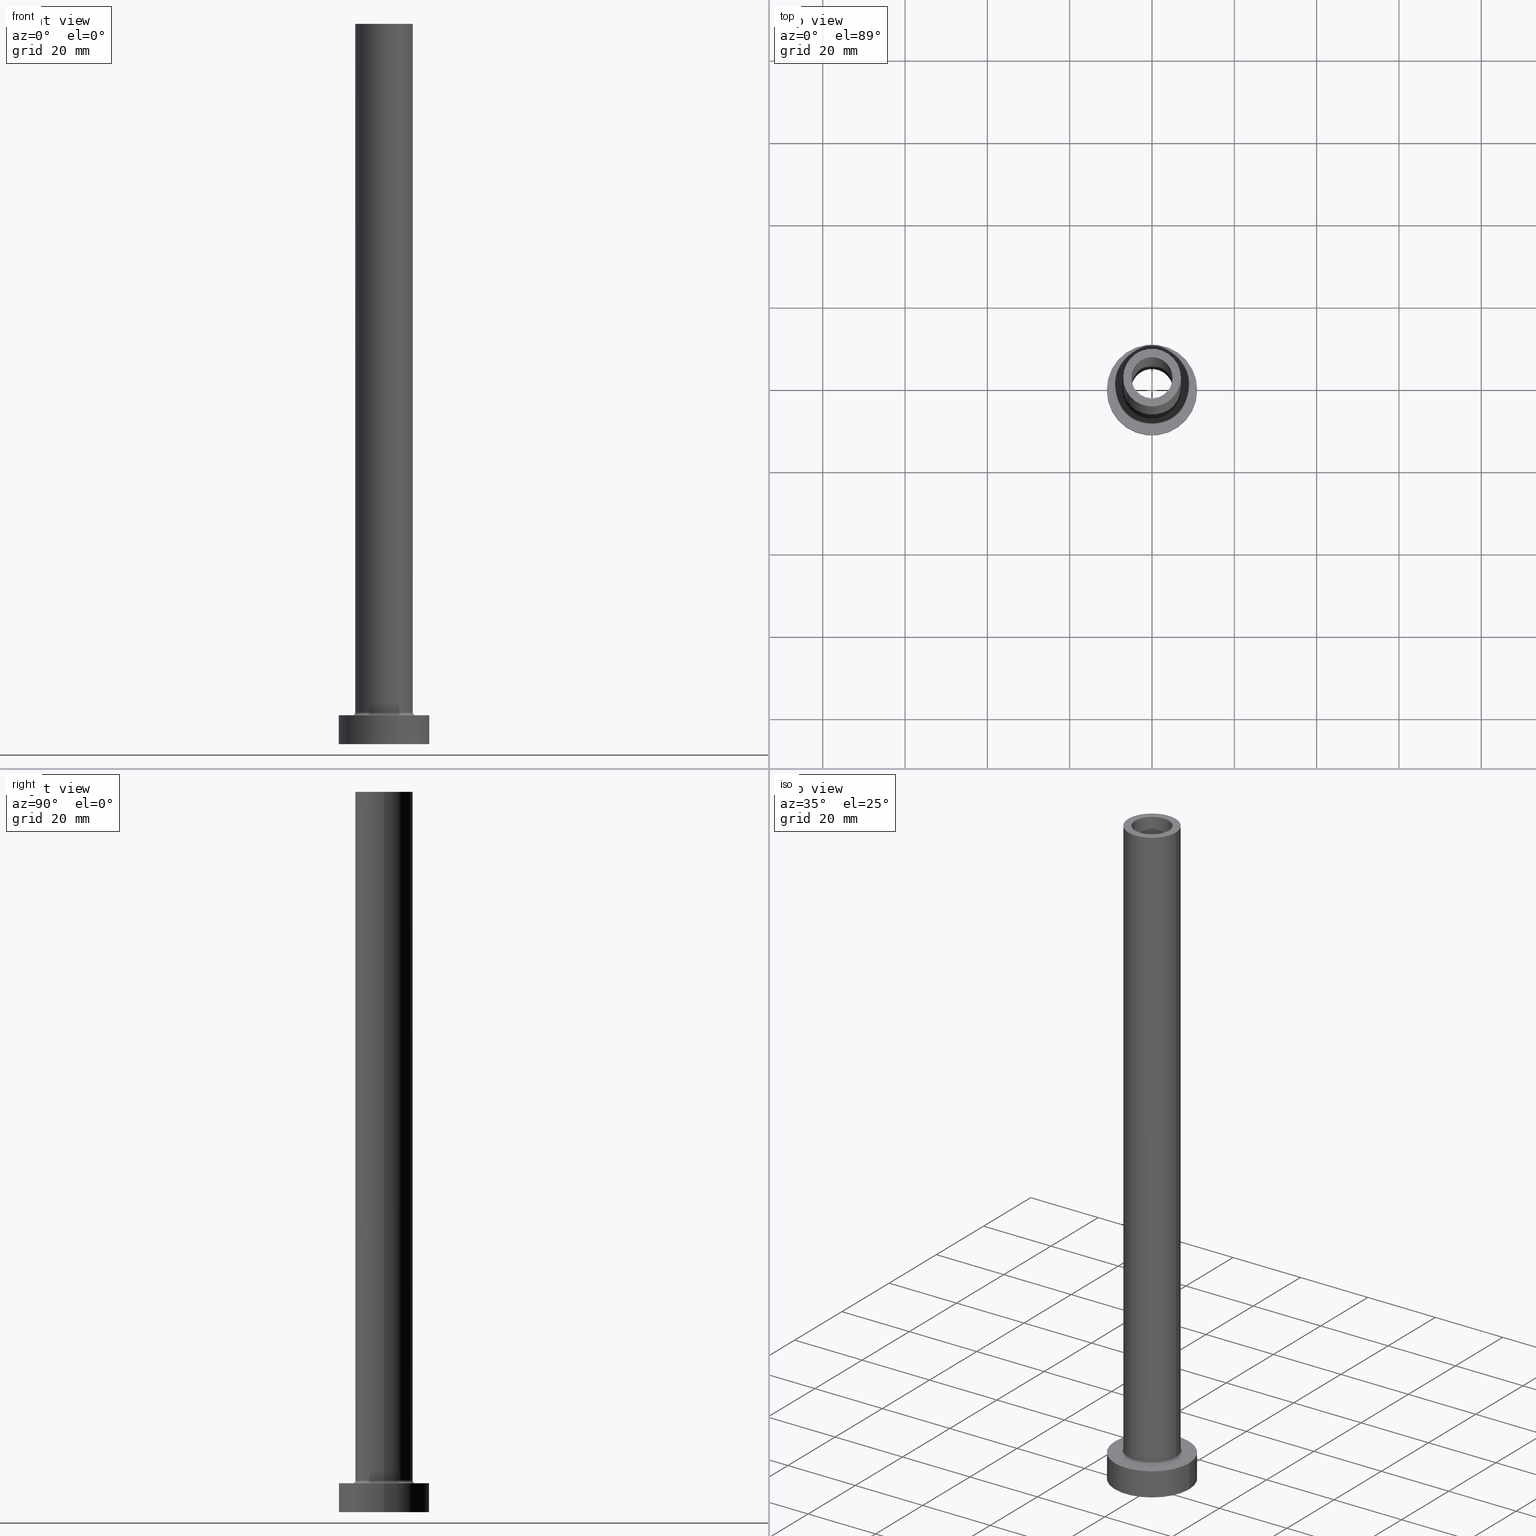
[diagram: canonical four-view strip — front | top / right | iso, engineering-drawing reading convention]
A machine part, canonical four-view strip (front | top / right | iso — engineering-drawing reading convention). The complete STEP part file that produces these views, byte-faithful:
ISO-10303-21;
HEADER;
FILE_DESCRIPTION (( 'STEP AP203' ),
    '1' );
FILE_NAME ('6ed9.STEP',
    '2023-02-13T10:08:19',
    ( '' ),
    ( '' ),
    'SwSTEP 2.0',
    'SolidWorks 2019',
    '' );
FILE_SCHEMA (( 'CONFIG_CONTROL_DESIGN' ));
ENDSEC;

DATA;
#1 = CARTESIAN_POINT ( 'NONE',  ( 0.000000000000000000, 0.000000000000000000, 130.0000000000000000 ) ) ;
#2 = EDGE_CURVE ( 'NONE', #259, #395, #414, .T. ) ;
#3 = EDGE_LOOP ( 'NONE', ( #216, #50 ) ) ;
#4 = ORIENTED_EDGE ( 'NONE', *, *, #83, .T. ) ;
#5 = CIRCLE ( 'NONE', #85, 5.000000000000000000 ) ;
#6 = VECTOR ( 'NONE', #121, 1000.000000000000000 ) ;
#7 = PRODUCT_RELATED_PRODUCT_CATEGORY ( 'detail', '', ( #456 ) ) ;
#8 = EDGE_LOOP ( 'NONE', ( #460, #440 ) ) ;
#9 = CARTESIAN_POINT ( 'NONE',  ( 11.00000000000000000, 1.347111479062088405E-15, 7.000000000000000000 ) ) ;
#10 = AXIS2_PLACEMENT_3D ( 'NONE', #351, #354, #417 ) ;
#11 = CC_DESIGN_APPROVAL ( #426, ( #382 ) ) ;
#12 = PERSON_AND_ORGANIZATION_ROLE ( 'creator' ) ;
#13 = CC_DESIGN_DATE_AND_TIME_ASSIGNMENT ( #161, #271, ( #450 ) ) ;
#14 = DIRECTION ( 'NONE',  ( -1.000000000000000000, 0.000000000000000000, 0.000000000000000000 ) ) ;
#15 = ORIENTED_EDGE ( 'NONE', *, *, #419, .T. ) ;
#16 = MANIFOLD_SOLID_BREP ( 'Odebrat vysunut�m4', #129 ) ;
#17 = DIRECTION ( 'NONE',  ( -0.000000000000000000, -0.000000000000000000, -1.000000000000000000 ) ) ;
#18 = CARTESIAN_POINT ( 'NONE',  ( 0.000000000000000000, 0.000000000000000000, 7.700000000000012612 ) ) ;
#19 = ORIENTED_EDGE ( 'NONE', *, *, #292, .T. ) ;
#20 = CIRCLE ( 'NONE', #409, 0.7000000000000000666 ) ;
#21 = CC_DESIGN_APPROVAL ( #205, ( #438 ) ) ;
#22 = CALENDAR_DATE ( 2023, 13, 2 ) ;
#23 = DIRECTION ( 'NONE',  ( -0.000000000000000000, -0.000000000000000000, -1.000000000000000000 ) ) ;
#24 = ORIENTED_EDGE ( 'NONE', *, *, #365, .T. ) ;
#25 = PERSON_AND_ORGANIZATION ( #214, #248 ) ;
#26 = CARTESIAN_POINT ( 'NONE',  ( -5.000000000000000000, 0.000000000000000000, 130.0000000000000000 ) ) ;
#27 = CALENDAR_DATE ( 2023, 13, 2 ) ;
#28 = CARTESIAN_POINT ( 'NONE',  ( 7.000000000000000888, 8.572527594031472204E-16, 7.700000000000012612 ) ) ;
#29 = VERTEX_POINT ( 'NONE', #439 ) ;
#30 = CIRCLE ( 'NONE', #256, 7.000000000000000888 ) ;
#31 = APPLICATION_PROTOCOL_DEFINITION ( 'international standard', 'config_control_design', 1994, #349 ) ;
#32 = PERSON_AND_ORGANIZATION ( #214, #248 ) ;
#33 = VERTEX_POINT ( 'NONE', #400 ) ;
#34 = EDGE_CURVE ( 'NONE', #395, #29, #453, .T. ) ;
#35 = COORDINATED_UNIVERSAL_TIME_OFFSET ( 1, 0, .AHEAD. ) ;
#36 = FACE_BOUND ( 'NONE', #312, .T. ) ;
#37 = ORIENTED_EDGE ( 'NONE', *, *, #110, .F. ) ;
#38 = DIRECTION ( 'NONE',  ( 0.000000000000000000, 0.000000000000000000, 1.000000000000000000 ) ) ;
#39 = CARTESIAN_POINT ( 'NONE',  ( -5.150000000000001243, 0.000000000000000000, 0.000000000000000000 ) ) ;
#40 = ORIENTED_EDGE ( 'NONE', *, *, #110, .T. ) ;
#41 = ADVANCED_FACE ( 'NONE', ( #452 ), #289, .F. ) ;
#42 = EDGE_LOOP ( 'NONE', ( #153, #53 ) ) ;
#43 = VERTEX_POINT ( 'NONE', #319 ) ;
#44 = AXIS2_PLACEMENT_3D ( 'NONE', #363, #136, #333 ) ;
#45 = EDGE_CURVE ( 'NONE', #128, #327, #175, .T. ) ;
#46 = DIRECTION ( 'NONE',  ( 0.000000000000000000, 0.000000000000000000, 1.000000000000000000 ) ) ;
#47 = AXIS2_PLACEMENT_3D ( 'NONE', #93, #154, #342 ) ;
#48 = CC_DESIGN_DATE_AND_TIME_ASSIGNMENT ( #399, #402, ( #438 ) ) ;
#49 =( LENGTH_UNIT ( ) NAMED_UNIT ( * ) SI_UNIT ( .MILLI., .METRE. ) );
#50 = ORIENTED_EDGE ( 'NONE', *, *, #45, .F. ) ;
#51 = CIRCLE ( 'NONE', #163, 5.150000000000001243 ) ;
#52 = PLANE ( 'NONE',  #109 ) ;
#53 = ORIENTED_EDGE ( 'NONE', *, *, #309, .T. ) ;
#54 = EDGE_CURVE ( 'NONE', #219, #43, #266, .T. ) ;
#55 = DIRECTION ( 'NONE',  ( 1.000000000000000000, 0.000000000000000000, 0.000000000000000000 ) ) ;
#56 = CIRCLE ( 'NONE', #143, 11.00000000000000000 ) ;
#57 = AXIS2_PLACEMENT_3D ( 'NONE', #373, #105, #66 ) ;
#58 = DIRECTION ( 'NONE',  ( 0.000000000000000000, 0.000000000000000000, -1.000000000000000000 ) ) ;
#59 = DIRECTION ( 'NONE',  ( 1.000000000000000000, 0.000000000000000000, 0.000000000000000000 ) ) ;
#60 = ORIENTED_EDGE ( 'NONE', *, *, #314, .F. ) ;
#61 = CARTESIAN_POINT ( 'NONE',  ( 0.000000000000000000, 0.000000000000000000, 7.000000000000000000 ) ) ;
#62 = CARTESIAN_POINT ( 'NONE',  ( -5.000000000000000000, 0.000000000000000000, 175.0000000000000284 ) ) ;
#63 = CARTESIAN_POINT ( 'NONE',  ( 0.000000000000000000, 0.000000000000000000, 0.000000000000000000 ) ) ;
#64 = EDGE_LOOP ( 'NONE', ( #436, #261, #234, #286 ) ) ;
#65 = DIRECTION ( 'NONE',  ( 1.000000000000000000, 0.000000000000000000, -0.000000000000000000 ) ) ;
#66 = DIRECTION ( 'NONE',  ( 1.000000000000000000, 0.000000000000000000, 0.000000000000000000 ) ) ;
#67 = DIRECTION ( 'NONE',  ( 0.000000000000000000, 0.000000000000000000, 1.000000000000000000 ) ) ;
#68 = ORIENTED_EDGE ( 'NONE', *, *, #120, .T. ) ;
#69 = VECTOR ( 'NONE', #174, 1000.000000000000000 ) ;
#70 = CYLINDRICAL_SURFACE ( 'NONE', #183, 5.000000000000000000 ) ;
#71 = CARTESIAN_POINT ( 'NONE',  ( 0.000000000000000000, 0.000000000000000000, 0.000000000000000000 ) ) ;
#72 = CARTESIAN_POINT ( 'NONE',  ( -5.000000000000000000, 0.000000000000000000, 175.0000000000000284 ) ) ;
#73 = DIRECTION ( 'NONE',  ( 0.000000000000000000, 0.000000000000000000, -1.000000000000000000 ) ) ;
#74 = ORIENTED_EDGE ( 'NONE', *, *, #326, .F. ) ;
#75 = ORIENTED_EDGE ( 'NONE', *, *, #34, .T. ) ;
#76 = EDGE_CURVE ( 'NONE', #203, #77, #324, .T. ) ;
#77 = VERTEX_POINT ( 'NONE', #369 ) ;
#78 = CARTESIAN_POINT ( 'NONE',  ( 7.700000000000001066, 0.000000000000000000, 7.000000000000006217 ) ) ;
#79 = CIRCLE ( 'NONE', #307, 7.000000000000000888 ) ;
#80 = APPROVAL_PERSON_ORGANIZATION ( #227, #180, #442 ) ;
#81 = ORIENTED_EDGE ( 'NONE', *, *, #410, .T. ) ;
#82 = FACE_BOUND ( 'NONE', #8, .T. ) ;
#83 = EDGE_CURVE ( 'NONE', #184, #457, #435, .T. ) ;
#84 = DESIGN_CONTEXT ( 'detailed design', #349, 'design' ) ;
#85 = AXIS2_PLACEMENT_3D ( 'NONE', #1, #346, #281 ) ;
#86 = CYLINDRICAL_SURFACE ( 'NONE', #389, 7.000000000000000888 ) ;
#87 = ORIENTED_EDGE ( 'NONE', *, *, #348, .T. ) ;
#88 = VECTOR ( 'NONE', #447, 1000.000000000000000 ) ;
#89 = EDGE_CURVE ( 'NONE', #77, #203, #51, .T. ) ;
#90 = ORIENTED_EDGE ( 'NONE', *, *, #45, .T. ) ;
#91 = CALENDAR_DATE ( 2023, 13, 2 ) ;
#92 = VECTOR ( 'NONE', #73, 1000.000000000000000 ) ;
#93 = CARTESIAN_POINT ( 'NONE',  ( 0.000000000000000000, 0.000000000000000000, 7.700000000000012612 ) ) ;
#94 =( NAMED_UNIT ( * ) SI_UNIT ( $, .STERADIAN. ) SOLID_ANGLE_UNIT ( ) );
#95 = APPROVAL_ROLE ( '' ) ;
#96 = FACE_OUTER_BOUND ( 'NONE', #398, .T. ) ;
#97 = VERTEX_POINT ( 'NONE', #26 ) ;
#98 = EDGE_CURVE ( 'NONE', #457, #97, #305, .T. ) ;
#99 = APPROVAL_STATUS ( 'not_yet_approved' ) ;
#100 = DIRECTION ( 'NONE',  ( 0.000000000000000000, 0.000000000000000000, 1.000000000000000000 ) ) ;
#101 = CARTESIAN_POINT ( 'NONE',  ( 11.00000000000000000, 1.347111479062088405E-15, 0.000000000000000000 ) ) ;
#102 = CARTESIAN_POINT ( 'NONE',  ( 0.000000000000000000, 0.000000000000000000, 130.0000000000000000 ) ) ;
#103 = ORIENTED_EDGE ( 'NONE', *, *, #280, .T. ) ;
#104 = EDGE_CURVE ( 'NONE', #97, #33, #362, .T. ) ;
#105 = DIRECTION ( 'NONE',  ( -0.000000000000000000, -0.000000000000000000, -1.000000000000000000 ) ) ;
#106 = DATE_AND_TIME ( #27, #241 ) ;
#107 = FACE_OUTER_BOUND ( 'NONE', #258, .T. ) ;
#108 = AXIS2_PLACEMENT_3D ( 'NONE', #61, #67, #65 ) ;
#109 = AXIS2_PLACEMENT_3D ( 'NONE', #225, #300, #375 ) ;
#110 = EDGE_CURVE ( 'NONE', #184, #33, #418, .T. ) ;
#111 = PERSON_AND_ORGANIZATION ( #214, #248 ) ;
#112 = EDGE_LOOP ( 'NONE', ( #356, #197, #445, #177 ) ) ;
#113 = CARTESIAN_POINT ( 'NONE',  ( -7.700000000000001066, 9.429780353434621002E-16, 7.700000000000012612 ) ) ;
#114 = ORIENTED_EDGE ( 'NONE', *, *, #309, .F. ) ;
#115 = PLANE ( 'NONE',  #257 ) ;
#116 = DIRECTION ( 'NONE',  ( 0.000000000000000000, 0.000000000000000000, 1.000000000000000000 ) ) ;
#117 = VECTOR ( 'NONE', #413, 1000.000000000000000 ) ;
#118 = DIRECTION ( 'NONE',  ( 1.000000000000000000, 0.000000000000000000, -0.000000000000000000 ) ) ;
#119 = PERSON_AND_ORGANIZATION ( #214, #248 ) ;
#120 = EDGE_CURVE ( 'NONE', #219, #206, #427, .T. ) ;
#121 = DIRECTION ( 'NONE',  ( -0.000000000000000000, -0.000000000000000000, -1.000000000000000000 ) ) ;
#122 = CARTESIAN_POINT ( 'NONE',  ( 7.000000000000000888, 8.572527594031472204E-16, 175.0000000000000284 ) ) ;
#123 = ORIENTED_EDGE ( 'NONE', *, *, #323, .F. ) ;
#124 = CC_DESIGN_SECURITY_CLASSIFICATION ( #450, ( #382 ) ) ;
#125 = CARTESIAN_POINT ( 'NONE',  ( 0.000000000000000000, 0.000000000000000000, 7.000000000000000000 ) ) ;
#126 = CARTESIAN_POINT ( 'NONE',  ( 0.000000000000000000, 0.000000000000000000, 175.0000000000000284 ) ) ;
#127 = ADVANCED_FACE ( 'NONE', ( #384 ), #226, .F. ) ;
#128 = VERTEX_POINT ( 'NONE', #265 ) ;
#129 = CLOSED_SHELL ( 'NONE', ( #238, #157, #232, #339, #296, #200, #168, #443, #192, #392, #41, #127, #371, #433 ) ) ;
#130 = CARTESIAN_POINT ( 'NONE',  ( 7.000000000000000888, 8.572527594031472204E-16, 175.0000000000000284 ) ) ;
#131 = PERSON_AND_ORGANIZATION ( #214, #248 ) ;
#132 = ORIENTED_EDGE ( 'NONE', *, *, #455, .T. ) ;
#133 = CARTESIAN_POINT ( 'NONE',  ( 0.000000000000000000, 0.000000000000000000, 130.0000000000000000 ) ) ;
#134 = DIRECTION ( 'NONE',  ( 1.000000000000000000, 0.000000000000000000, 0.000000000000000000 ) ) ;
#135 = CC_DESIGN_PERSON_AND_ORGANIZATION_ASSIGNMENT ( #111, #12, ( #438 ) ) ;
#136 = DIRECTION ( 'NONE',  ( 0.000000000000000000, 0.000000000000000000, 1.000000000000000000 ) ) ;
#137 = CIRCLE ( 'NONE', #458, 5.000000000000000000 ) ;
#138 = CARTESIAN_POINT ( 'NONE',  ( 0.000000000000000000, 0.000000000000000000, 175.0000000000000284 ) ) ;
#139 = LINE ( 'NONE', #167, #69 ) ;
#140 = AXIS2_PLACEMENT_3D ( 'NONE', #133, #270, #344 ) ;
#141 = DIRECTION ( 'NONE',  ( 1.000000000000000000, 0.000000000000000000, 0.000000000000000000 ) ) ;
#142 = CC_DESIGN_PERSON_AND_ORGANIZATION_ASSIGNMENT ( #291, #173, ( #456 ) ) ;
#143 = AXIS2_PLACEMENT_3D ( 'NONE', #313, #116, #290 ) ;
#144 = PLANE ( 'NONE',  #390 ) ;
#145 = COORDINATED_UNIVERSAL_TIME_OFFSET ( 1, 0, .AHEAD. ) ;
#146 = ORIENTED_EDGE ( 'NONE', *, *, #120, .F. ) ;
#147 =( GEOMETRIC_REPRESENTATION_CONTEXT ( 3 ) GLOBAL_UNCERTAINTY_ASSIGNED_CONTEXT ( ( #288 ) ) GLOBAL_UNIT_ASSIGNED_CONTEXT ( ( #49, #335, #94 ) ) REPRESENTATION_CONTEXT ( 'NONE', 'WORKASPACE' ) );
#148 = DIRECTION ( 'NONE',  ( -1.000000000000000000, 0.000000000000000000, 0.000000000000000000 ) ) ;
#149 = DIRECTION ( 'NONE',  ( 0.000000000000000000, -1.000000000000000000, 0.000000000000000000 ) ) ;
#150 = LINE ( 'NONE', #122, #380 ) ;
#151 = DIRECTION ( 'NONE',  ( 1.000000000000000000, 0.000000000000000000, 0.000000000000000000 ) ) ;
#152 = AXIS2_PLACEMENT_3D ( 'NONE', #318, #275, #379 ) ;
#153 = ORIENTED_EDGE ( 'NONE', *, *, #359, .T. ) ;
#154 = DIRECTION ( 'NONE',  ( 0.000000000000000000, 0.000000000000000000, 1.000000000000000000 ) ) ;
#155 = CARTESIAN_POINT ( 'NONE',  ( 0.000000000000000000, 0.000000000000000000, 144.5663996924429000 ) ) ;
#156 = ORIENTED_EDGE ( 'NONE', *, *, #104, .T. ) ;
#157 = ADVANCED_FACE ( 'NONE', ( #274 ), #407, .F. ) ;
#158 = ORIENTED_EDGE ( 'NONE', *, *, #217, .T. ) ;
#159 = LOCAL_TIME ( 11, 8, 19.00000000000000000, #302 ) ;
#160 = DIRECTION ( 'NONE',  ( 1.000000000000000000, 0.000000000000000000, 0.000000000000000000 ) ) ;
#161 = DATE_AND_TIME ( #22, #159 ) ;
#162 = CARTESIAN_POINT ( 'NONE',  ( -11.00000000000000000, 0.000000000000000000, 7.000000000000000000 ) ) ;
#163 = AXIS2_PLACEMENT_3D ( 'NONE', #454, #231, #383 ) ;
#164 = PERSON_AND_ORGANIZATION_ROLE ( 'creator' ) ;
#165 = CARTESIAN_POINT ( 'NONE',  ( 0.000000000000000000, 0.000000000000000000, 144.5663996924429000 ) ) ;
#166 = DIRECTION ( 'NONE',  ( 1.000000000000000000, 0.000000000000000000, 0.000000000000000000 ) ) ;
#167 = CARTESIAN_POINT ( 'NONE',  ( 5.150000000000001243, 6.306931015608869596E-16, 144.5663996924429000 ) ) ;
#168 = ADVANCED_FACE ( 'NONE', ( #36, #223 ), #193, .T. ) ;
#169 = ORIENTED_EDGE ( 'NONE', *, *, #263, .F. ) ;
#170 = CIRCLE ( 'NONE', #44, 7.000000000000000888 ) ;
#171 = LOCAL_TIME ( 11, 8, 19.00000000000000000, #145 ) ;
#172 = ORIENTED_EDGE ( 'NONE', *, *, #323, .T. ) ;
#173 = PERSON_AND_ORGANIZATION_ROLE ( 'design_owner' ) ;
#174 = DIRECTION ( 'NONE',  ( 0.000000000000000000, 0.000000000000000000, -1.000000000000000000 ) ) ;
#175 = CIRCLE ( 'NONE', #330, 5.150000000000001243 ) ;
#176 = CC_DESIGN_PERSON_AND_ORGANIZATION_ASSIGNMENT ( #224, #366, ( #450 ) ) ;
#177 = ORIENTED_EDGE ( 'NONE', *, *, #2, .F. ) ;
#178 = DIRECTION ( 'NONE',  ( 0.000000000000000000, 0.000000000000000000, -1.000000000000000000 ) ) ;
#179 = CIRCLE ( 'NONE', #293, 7.700000000000001066 ) ;
#180 = APPROVAL ( #99, 'NEUR�EN�' ) ;
#181 = EDGE_LOOP ( 'NONE', ( #204, #146, #283, #19 ) ) ;
#182 = TOROIDAL_SURFACE ( 'NONE', #47, 7.700000000000001066, 0.6999999999999999556 ) ;
#183 = AXIS2_PLACEMENT_3D ( 'NONE', #138, #250, #213 ) ;
#184 = VERTEX_POINT ( 'NONE', #196 ) ;
#185 = EDGE_LOOP ( 'NONE', ( #236, #317, #90, #245 ) ) ;
#186 = ORIENTED_EDGE ( 'NONE', *, *, #217, .F. ) ;
#187 = ORIENTED_EDGE ( 'NONE', *, *, #89, .T. ) ;
#188 = SHAPE_DEFINITION_REPRESENTATION ( #235, #461 ) ;
#189 = CYLINDRICAL_SURFACE ( 'NONE', #190, 11.00000000000000000 ) ;
#190 = AXIS2_PLACEMENT_3D ( 'NONE', #279, #350, #201 ) ;
#191 = CC_DESIGN_APPROVAL ( #180, ( #450 ) ) ;
#192 = ADVANCED_FACE ( 'NONE', ( #422 ), #86, .T. ) ;
#193 = PLANE ( 'NONE',  #108 ) ;
#194 = LINE ( 'NONE', #162, #396 ) ;
#195 = EDGE_LOOP ( 'NONE', ( #199, #253 ) ) ;
#196 = CARTESIAN_POINT ( 'NONE',  ( 5.000000000000000000, 6.123233995736766282E-16, 175.0000000000000284 ) ) ;
#197 = ORIENTED_EDGE ( 'NONE', *, *, #336, .T. ) ;
#198 = DIRECTION ( 'NONE',  ( 0.000000000000000000, 0.000000000000000000, -1.000000000000000000 ) ) ;
#199 = ORIENTED_EDGE ( 'NONE', *, *, #76, .F. ) ;
#200 = ADVANCED_FACE ( 'NONE', ( #294 ), #251, .T. ) ;
#201 = DIRECTION ( 'NONE',  ( -1.000000000000000000, 0.000000000000000000, 0.000000000000000000 ) ) ;
#202 = DIRECTION ( 'NONE',  ( 1.000000000000000000, 0.000000000000000000, 0.000000000000000000 ) ) ;
#203 = VERTEX_POINT ( 'NONE', #212 ) ;
#204 = ORIENTED_EDGE ( 'NONE', *, *, #222, .F. ) ;
#205 = APPROVAL ( #303, 'NEUR�EN�' ) ;
#206 = VERTEX_POINT ( 'NONE', #130 ) ;
#207 = CYLINDRICAL_SURFACE ( 'NONE', #10, 7.000000000000000888 ) ;
#208 = AXIS2_PLACEMENT_3D ( 'NONE', #311, #269, #59 ) ;
#209 = AXIS2_PLACEMENT_3D ( 'NONE', #71, #38, #166 ) ;
#210 = CALENDAR_DATE ( 2023, 13, 2 ) ;
#211 = FACE_BOUND ( 'NONE', #3, .T. ) ;
#212 = CARTESIAN_POINT ( 'NONE',  ( -5.150000000000001243, 0.000000000000000000, 130.0000000000000000 ) ) ;
#213 = DIRECTION ( 'NONE',  ( -1.000000000000000000, 0.000000000000000000, 0.000000000000000000 ) ) ;
#214 = PERSON ( 'NEUR�EN�', 'NEUR�EN�', 'NEUR�EN�', ('NEUR�EN�'), ('NEUR�EN�'), ('NEUR�EN�') ) ;
#215 = DIRECTION ( 'NONE',  ( 1.000000000000000000, 0.000000000000000000, 0.000000000000000000 ) ) ;
#216 = ORIENTED_EDGE ( 'NONE', *, *, #455, .F. ) ;
#217 = EDGE_CURVE ( 'NONE', #259, #43, #30, .T. ) ;
#218 = DIRECTION ( 'NONE',  ( -0.000000000000000000, -0.000000000000000000, -1.000000000000000000 ) ) ;
#219 = VERTEX_POINT ( 'NONE', #297 ) ;
#220 = EDGE_LOOP ( 'NONE', ( #74, #187, #81, #132 ) ) ;
#221 = DIRECTION ( 'NONE',  ( 1.000000000000000000, 0.000000000000000000, 0.000000000000000000 ) ) ;
#222 = EDGE_CURVE ( 'NONE', #206, #259, #150, .T. ) ;
#223 = FACE_OUTER_BOUND ( 'NONE', #42, .T. ) ;
#224 = PERSON_AND_ORGANIZATION ( #214, #248 ) ;
#225 = CARTESIAN_POINT ( 'NONE',  ( 0.000000000000000000, 0.000000000000000000, 0.000000000000000000 ) ) ;
#226 = CYLINDRICAL_SURFACE ( 'NONE', #299, 5.150000000000001243 ) ;
#227 = PERSON_AND_ORGANIZATION ( #214, #248 ) ;
#228 = ORIENTED_EDGE ( 'NONE', *, *, #419, .F. ) ;
#229 = FACE_OUTER_BOUND ( 'NONE', #429, .T. ) ;
#230 = DIRECTION ( 'NONE',  ( 1.000000000000000000, 0.000000000000000000, 0.000000000000000000 ) ) ;
#231 = DIRECTION ( 'NONE',  ( 0.000000000000000000, 0.000000000000000000, 1.000000000000000000 ) ) ;
#232 = ADVANCED_FACE ( 'NONE', ( #254 ), #182, .F. ) ;
#233 = CARTESIAN_POINT ( 'NONE',  ( 0.000000000000000000, 0.000000000000000000, 175.0000000000000284 ) ) ;
#234 = ORIENTED_EDGE ( 'NONE', *, *, #263, .T. ) ;
#235 = PRODUCT_DEFINITION_SHAPE ( 'NONE', 'NONE',  #438 ) ;
#236 = ORIENTED_EDGE ( 'NONE', *, *, #76, .T. ) ;
#237 = EDGE_LOOP ( 'NONE', ( #156, #172 ) ) ;
#238 = ADVANCED_FACE ( 'NONE', ( #368 ), #412, .F. ) ;
#239 = CARTESIAN_POINT ( 'NONE',  ( 0.000000000000000000, 0.000000000000000000, 0.000000000000000000 ) ) ;
#240 = ORIENTED_EDGE ( 'NONE', *, *, #104, .F. ) ;
#241 = LOCAL_TIME ( 11, 8, 19.00000000000000000, #35 ) ;
#242 = CARTESIAN_POINT ( 'NONE',  ( -5.150000000000001243, 0.000000000000000000, 144.5663996924429000 ) ) ;
#243 = DIRECTION ( 'NONE',  ( -1.000000000000000000, 1.224646799147351975E-16, 0.000000000000000000 ) ) ;
#244 = MECHANICAL_CONTEXT ( 'NONE', #385, 'mechanical' ) ;
#245 = ORIENTED_EDGE ( 'NONE', *, *, #410, .F. ) ;
#246 = CC_DESIGN_PERSON_AND_ORGANIZATION_ASSIGNMENT ( #131, #164, ( #382 ) ) ;
#247 = CARTESIAN_POINT ( 'NONE',  ( 11.00000000000000000, 1.347111479062088405E-15, 7.000000000000000000 ) ) ;
#248 = ORGANIZATION ( 'NEUR�EN�', 'NEUR�EN�', '' ) ;
#249 = ORIENTED_EDGE ( 'NONE', *, *, #54, .F. ) ;
#250 = DIRECTION ( 'NONE',  ( 0.000000000000000000, 0.000000000000000000, -1.000000000000000000 ) ) ;
#251 = CYLINDRICAL_SURFACE ( 'NONE', #367, 11.00000000000000000 ) ;
#252 = AXIS2_PLACEMENT_3D ( 'NONE', #337, #308, #230 ) ;
#253 = ORIENTED_EDGE ( 'NONE', *, *, #89, .F. ) ;
#254 = FACE_OUTER_BOUND ( 'NONE', #112, .T. ) ;
#255 = VERTEX_POINT ( 'NONE', #260 ) ;
#256 = AXIS2_PLACEMENT_3D ( 'NONE', #358, #360, #215 ) ;
#257 = AXIS2_PLACEMENT_3D ( 'NONE', #357, #46, #325 ) ;
#258 = EDGE_LOOP ( 'NONE', ( #377, #338, #158, #249 ) ) ;
#259 = VERTEX_POINT ( 'NONE', #28 ) ;
#260 = CARTESIAN_POINT ( 'NONE',  ( -11.00000000000000000, 0.000000000000000000, 7.000000000000000000 ) ) ;
#261 = ORIENTED_EDGE ( 'NONE', *, *, #359, .F. ) ;
#262 = APPROVAL_ROLE ( '' ) ;
#263 = EDGE_CURVE ( 'NONE', #255, #345, #194, .T. ) ;
#264 = VERTEX_POINT ( 'NONE', #101 ) ;
#265 = CARTESIAN_POINT ( 'NONE',  ( 5.150000000000001243, 6.306931015608869596E-16, 0.000000000000000000 ) ) ;
#266 = LINE ( 'NONE', #408, #88 ) ;
#267 = APPROVAL_DATE_TIME ( #310, #426 ) ;
#268 = LOCAL_TIME ( 11, 8, 19.00000000000000000, #405 ) ;
#269 = DIRECTION ( 'NONE',  ( 0.000000000000000000, 0.000000000000000000, 1.000000000000000000 ) ) ;
#270 = DIRECTION ( 'NONE',  ( 0.000000000000000000, 0.000000000000000000, 1.000000000000000000 ) ) ;
#271 = DATE_TIME_ROLE ( 'classification_date' ) ;
#272 = DIRECTION ( 'NONE',  ( 0.000000000000000000, 0.000000000000000000, 1.000000000000000000 ) ) ;
#273 = FACE_OUTER_BOUND ( 'NONE', #391, .T. ) ;
#274 = FACE_OUTER_BOUND ( 'NONE', #185, .T. ) ;
#275 = DIRECTION ( 'NONE',  ( 0.000000000000000000, 0.000000000000000000, 1.000000000000000000 ) ) ;
#276 = EDGE_CURVE ( 'NONE', #206, #219, #170, .T. ) ;
#277 = DIRECTION ( 'NONE',  ( 1.000000000000000000, 0.000000000000000000, 0.000000000000000000 ) ) ;
#278 = DIRECTION ( 'NONE',  ( 0.000000000000000000, 0.000000000000000000, 1.000000000000000000 ) ) ;
#279 = CARTESIAN_POINT ( 'NONE',  ( 0.000000000000000000, 0.000000000000000000, 7.000000000000000000 ) ) ;
#280 = EDGE_CURVE ( 'NONE', #29, #395, #179, .T. ) ;
#281 = DIRECTION ( 'NONE',  ( 1.000000000000000000, 0.000000000000000000, 0.000000000000000000 ) ) ;
#282 = DIRECTION ( 'NONE',  ( 0.000000000000000000, 0.000000000000000000, 1.000000000000000000 ) ) ;
#283 = ORIENTED_EDGE ( 'NONE', *, *, #54, .T. ) ;
#284 = CARTESIAN_POINT ( 'NONE',  ( 0.000000000000000000, 0.000000000000000000, 130.0000000000000000 ) ) ;
#285 = AXIS2_PLACEMENT_3D ( 'NONE', #126, #58, #304 ) ;
#286 = ORIENTED_EDGE ( 'NONE', *, *, #314, .T. ) ;
#287 = AXIS2_PLACEMENT_3D ( 'NONE', #320, #449, #134 ) ;
#288 = UNCERTAINTY_MEASURE_WITH_UNIT (LENGTH_MEASURE( 1.000000000000000082E-05 ), #49, 'distance_accuracy_value', 'NONE');
#289 = TOROIDAL_SURFACE ( 'NONE', #403, 7.700000000000001066, 0.6999999999999999556 ) ;
#290 = DIRECTION ( 'NONE',  ( 1.000000000000000000, 0.000000000000000000, 0.000000000000000000 ) ) ;
#291 = PERSON_AND_ORGANIZATION ( #214, #248 ) ;
#292 = EDGE_CURVE ( 'NONE', #43, #259, #79, .T. ) ;
#293 = AXIS2_PLACEMENT_3D ( 'NONE', #306, #23, #55 ) ;
#294 = FACE_OUTER_BOUND ( 'NONE', #64, .T. ) ;
#295 = APPROVAL_PERSON_ORGANIZATION ( #119, #205, #262 ) ;
#296 = ADVANCED_FACE ( 'NONE', ( #96 ), #189, .T. ) ;
#297 = CARTESIAN_POINT ( 'NONE',  ( -7.000000000000000888, 0.000000000000000000, 175.0000000000000284 ) ) ;
#298 = DIRECTION ( 'NONE',  ( 0.000000000000000000, 0.000000000000000000, -1.000000000000000000 ) ) ;
#299 = AXIS2_PLACEMENT_3D ( 'NONE', #155, #198, #444 ) ;
#300 = DIRECTION ( 'NONE',  ( 0.000000000000000000, 0.000000000000000000, 1.000000000000000000 ) ) ;
#301 = ORIENTED_EDGE ( 'NONE', *, *, #98, .T. ) ;
#302 = COORDINATED_UNIVERSAL_TIME_OFFSET ( 1, 0, .AHEAD. ) ;
#303 = APPROVAL_STATUS ( 'not_yet_approved' ) ;
#304 = DIRECTION ( 'NONE',  ( -1.000000000000000000, 0.000000000000000000, 0.000000000000000000 ) ) ;
#305 = LINE ( 'NONE', #72, #117 ) ;
#306 = CARTESIAN_POINT ( 'NONE',  ( 0.000000000000000000, 0.000000000000000000, 7.000000000000000000 ) ) ;
#307 = AXIS2_PLACEMENT_3D ( 'NONE', #18, #272, #151 ) ;
#308 = DIRECTION ( 'NONE',  ( -0.000000000000000000, -0.000000000000000000, -1.000000000000000000 ) ) ;
#309 = EDGE_CURVE ( 'NONE', #387, #255, #355, .T. ) ;
#310 = DATE_AND_TIME ( #374, #434 ) ;
#311 = CARTESIAN_POINT ( 'NONE',  ( 0.000000000000000000, 0.000000000000000000, 175.0000000000000284 ) ) ;
#312 = EDGE_LOOP ( 'NONE', ( #75, #103 ) ) ;
#313 = CARTESIAN_POINT ( 'NONE',  ( 0.000000000000000000, 0.000000000000000000, 7.000000000000000000 ) ) ;
#314 = EDGE_CURVE ( 'NONE', #345, #264, #343, .T. ) ;
#315 = DIRECTION ( 'NONE',  ( 0.000000000000000000, 0.000000000000000000, 1.000000000000000000 ) ) ;
#316 = CIRCLE ( 'NONE', #57, 5.150000000000001243 ) ;
#317 = ORIENTED_EDGE ( 'NONE', *, *, #326, .T. ) ;
#318 = CARTESIAN_POINT ( 'NONE',  ( 0.000000000000000000, 0.000000000000000000, 7.000000000000000000 ) ) ;
#319 = CARTESIAN_POINT ( 'NONE',  ( -7.000000000000000888, 0.000000000000000000, 7.700000000000012612 ) ) ;
#320 = CARTESIAN_POINT ( 'NONE',  ( 0.000000000000000000, 0.000000000000000000, 0.000000000000000000 ) ) ;
#321 = EDGE_LOOP ( 'NONE', ( #87, #40, #240, #404 ) ) ;
#322 = FACE_OUTER_BOUND ( 'NONE', #195, .T. ) ;
#323 = EDGE_CURVE ( 'NONE', #33, #97, #5, .T. ) ;
#324 = CIRCLE ( 'NONE', #140, 5.150000000000001243 ) ;
#325 = DIRECTION ( 'NONE',  ( 1.000000000000000000, 0.000000000000000000, -0.000000000000000000 ) ) ;
#326 = EDGE_CURVE ( 'NONE', #77, #128, #139, .T. ) ;
#327 = VERTEX_POINT ( 'NONE', #39 ) ;
#328 = AXIS2_PLACEMENT_3D ( 'NONE', #233, #376, #221 ) ;
#329 = AXIS2_PLACEMENT_3D ( 'NONE', #63, #315, #141 ) ;
#330 = AXIS2_PLACEMENT_3D ( 'NONE', #239, #386, #160 ) ;
#331 = CARTESIAN_POINT ( 'NONE',  ( 7.700000000000001066, 0.000000000000000000, 7.700000000000012612 ) ) ;
#332 = CARTESIAN_POINT ( 'NONE',  ( 0.000000000000000000, 0.000000000000000000, 175.0000000000000284 ) ) ;
#333 = DIRECTION ( 'NONE',  ( 1.000000000000000000, 0.000000000000000000, 0.000000000000000000 ) ) ;
#334 = EDGE_LOOP ( 'NONE', ( #424, #186, #353, #388 ) ) ;
#335 =( NAMED_UNIT ( * ) PLANE_ANGLE_UNIT ( ) SI_UNIT ( $, .RADIAN. ) );
#336 = EDGE_CURVE ( 'NONE', #43, #29, #20, .T. ) ;
#337 = CARTESIAN_POINT ( 'NONE',  ( 0.000000000000000000, 0.000000000000000000, 7.000000000000000000 ) ) ;
#338 = ORIENTED_EDGE ( 'NONE', *, *, #222, .T. ) ;
#339 = ADVANCED_FACE ( 'NONE', ( #107 ), #207, .T. ) ;
#340 = CARTESIAN_POINT ( 'NONE',  ( 5.000000000000000000, 6.123233995736766282E-16, 175.0000000000000284 ) ) ;
#341 = APPROVAL_STATUS ( 'not_yet_approved' ) ;
#342 = DIRECTION ( 'NONE',  ( 1.000000000000000000, 0.000000000000000000, 0.000000000000000000 ) ) ;
#343 = CIRCLE ( 'NONE', #209, 11.00000000000000000 ) ;
#344 = DIRECTION ( 'NONE',  ( 1.000000000000000000, 0.000000000000000000, 0.000000000000000000 ) ) ;
#345 = VERTEX_POINT ( 'NONE', #381 ) ;
#346 = DIRECTION ( 'NONE',  ( 0.000000000000000000, 0.000000000000000000, 1.000000000000000000 ) ) ;
#347 = CARTESIAN_POINT ( 'NONE',  ( 0.000000000000000000, 0.000000000000000000, 175.0000000000000284 ) ) ;
#348 = EDGE_CURVE ( 'NONE', #457, #184, #137, .T. ) ;
#349 = APPLICATION_CONTEXT ( 'configuration controlled 3d designs of mechanical parts and assemblies' ) ;
#350 = DIRECTION ( 'NONE',  ( -0.000000000000000000, -0.000000000000000000, -1.000000000000000000 ) ) ;
#351 = CARTESIAN_POINT ( 'NONE',  ( 0.000000000000000000, 0.000000000000000000, 175.0000000000000284 ) ) ;
#352 = LINE ( 'NONE', #242, #428 ) ;
#353 = ORIENTED_EDGE ( 'NONE', *, *, #2, .T. ) ;
#354 = DIRECTION ( 'NONE',  ( -0.000000000000000000, -0.000000000000000000, -1.000000000000000000 ) ) ;
#355 = CIRCLE ( 'NONE', #152, 11.00000000000000000 ) ;
#356 = ORIENTED_EDGE ( 'NONE', *, *, #292, .F. ) ;
#357 = CARTESIAN_POINT ( 'NONE',  ( 0.000000000000000000, 0.000000000000000000, 175.0000000000000284 ) ) ;
#358 = CARTESIAN_POINT ( 'NONE',  ( 0.000000000000000000, 0.000000000000000000, 7.700000000000012612 ) ) ;
#359 = EDGE_CURVE ( 'NONE', #255, #387, #56, .T. ) ;
#360 = DIRECTION ( 'NONE',  ( 0.000000000000000000, 0.000000000000000000, 1.000000000000000000 ) ) ;
#361 = ORIENTED_EDGE ( 'NONE', *, *, #276, .T. ) ;
#362 = CIRCLE ( 'NONE', #430, 5.000000000000000000 ) ;
#363 = CARTESIAN_POINT ( 'NONE',  ( 0.000000000000000000, 0.000000000000000000, 175.0000000000000284 ) ) ;
#364 = DATE_AND_TIME ( #91, #268 ) ;
#365 = EDGE_CURVE ( 'NONE', #387, #264, #432, .T. ) ;
#366 = PERSON_AND_ORGANIZATION_ROLE ( 'classification_officer' ) ;
#367 = AXIS2_PLACEMENT_3D ( 'NONE', #125, #17, #148 ) ;
#368 = FACE_OUTER_BOUND ( 'NONE', #321, .T. ) ;
#369 = CARTESIAN_POINT ( 'NONE',  ( 5.150000000000001243, 6.306931015608869596E-16, 130.0000000000000000 ) ) ;
#370 = EDGE_LOOP ( 'NONE', ( #68, #361 ) ) ;
#371 = ADVANCED_FACE ( 'NONE', ( #393, #322 ), #144, .F. ) ;
#372 = AXIS2_PLACEMENT_3D ( 'NONE', #331, #149, #298 ) ;
#373 = CARTESIAN_POINT ( 'NONE',  ( 0.000000000000000000, 0.000000000000000000, 0.000000000000000000 ) ) ;
#374 = CALENDAR_DATE ( 2023, 13, 2 ) ;
#375 = DIRECTION ( 'NONE',  ( 1.000000000000000000, 0.000000000000000000, -0.000000000000000000 ) ) ;
#376 = DIRECTION ( 'NONE',  ( 0.000000000000000000, 0.000000000000000000, 1.000000000000000000 ) ) ;
#377 = ORIENTED_EDGE ( 'NONE', *, *, #276, .F. ) ;
#378 = PERSON_AND_ORGANIZATION_ROLE ( 'design_supplier' ) ;
#379 = DIRECTION ( 'NONE',  ( 1.000000000000000000, 0.000000000000000000, 0.000000000000000000 ) ) ;
#380 = VECTOR ( 'NONE', #437, 1000.000000000000000 ) ;
#381 = CARTESIAN_POINT ( 'NONE',  ( -11.00000000000000000, 0.000000000000000000, 0.000000000000000000 ) ) ;
#382 = PRODUCT_DEFINITION_FORMATION_WITH_SPECIFIED_SOURCE ( 'LIBOVOLN�', '', #456, .NOT_KNOWN. ) ;
#383 = DIRECTION ( 'NONE',  ( 1.000000000000000000, 0.000000000000000000, 0.000000000000000000 ) ) ;
#384 = FACE_OUTER_BOUND ( 'NONE', #220, .T. ) ;
#385 = APPLICATION_CONTEXT ( 'configuration controlled 3d designs of mechanical parts and assemblies' ) ;
#386 = DIRECTION ( 'NONE',  ( -0.000000000000000000, -0.000000000000000000, -1.000000000000000000 ) ) ;
#387 = VERTEX_POINT ( 'NONE', #247 ) ;
#388 = ORIENTED_EDGE ( 'NONE', *, *, #280, .F. ) ;
#389 = AXIS2_PLACEMENT_3D ( 'NONE', #332, #397, #14 ) ;
#390 = AXIS2_PLACEMENT_3D ( 'NONE', #284, #431, #118 ) ;
#391 = EDGE_LOOP ( 'NONE', ( #60, #228 ) ) ;
#392 = ADVANCED_FACE ( 'NONE', ( #82, #394 ), #115, .T. ) ;
#393 = FACE_BOUND ( 'NONE', #237, .T. ) ;
#394 = FACE_OUTER_BOUND ( 'NONE', #370, .T. ) ;
#395 = VERTEX_POINT ( 'NONE', #78 ) ;
#396 = VECTOR ( 'NONE', #218, 1000.000000000000000 ) ;
#397 = DIRECTION ( 'NONE',  ( -0.000000000000000000, -0.000000000000000000, -1.000000000000000000 ) ) ;
#398 = EDGE_LOOP ( 'NONE', ( #114, #24, #15, #169 ) ) ;
#399 = DATE_AND_TIME ( #210, #171 ) ;
#400 = CARTESIAN_POINT ( 'NONE',  ( 5.000000000000000000, 6.123233995736766282E-16, 130.0000000000000000 ) ) ;
#401 = CC_DESIGN_PERSON_AND_ORGANIZATION_ASSIGNMENT ( #32, #378, ( #382 ) ) ;
#402 = DATE_TIME_ROLE ( 'creation_date' ) ;
#403 = AXIS2_PLACEMENT_3D ( 'NONE', #459, #282, #423 ) ;
#404 = ORIENTED_EDGE ( 'NONE', *, *, #98, .F. ) ;
#405 = COORDINATED_UNIVERSAL_TIME_OFFSET ( 1, 0, .AHEAD. ) ;
#406 = APPROVAL_DATE_TIME ( #106, #180 ) ;
#407 = CYLINDRICAL_SURFACE ( 'NONE', #448, 5.150000000000001243 ) ;
#408 = CARTESIAN_POINT ( 'NONE',  ( -7.000000000000000888, 0.000000000000000000, 175.0000000000000284 ) ) ;
#409 = AXIS2_PLACEMENT_3D ( 'NONE', #113, #420, #243 ) ;
#410 = EDGE_CURVE ( 'NONE', #203, #327, #352, .T. ) ;
#411 = APPROVAL_PERSON_ORGANIZATION ( #25, #426, #95 ) ;
#412 = CYLINDRICAL_SURFACE ( 'NONE', #285, 5.000000000000000000 ) ;
#413 = DIRECTION ( 'NONE',  ( 0.000000000000000000, 0.000000000000000000, -1.000000000000000000 ) ) ;
#414 = CIRCLE ( 'NONE', #372, 0.7000000000000000666 ) ;
#415 = DIRECTION ( 'NONE',  ( -1.000000000000000000, 0.000000000000000000, 0.000000000000000000 ) ) ;
#416 = COORDINATED_UNIVERSAL_TIME_OFFSET ( 1, 0, .AHEAD. ) ;
#417 = DIRECTION ( 'NONE',  ( -1.000000000000000000, 0.000000000000000000, 0.000000000000000000 ) ) ;
#418 = LINE ( 'NONE', #340, #92 ) ;
#419 = EDGE_CURVE ( 'NONE', #264, #345, #441, .T. ) ;
#420 = DIRECTION ( 'NONE',  ( 1.224646799147353207E-16, 1.000000000000000000, -0.000000000000000000 ) ) ;
#421 = APPROVAL_DATE_TIME ( #364, #205 ) ;
#422 = FACE_OUTER_BOUND ( 'NONE', #181, .T. ) ;
#423 = DIRECTION ( 'NONE',  ( 1.000000000000000000, 0.000000000000000000, 0.000000000000000000 ) ) ;
#424 = ORIENTED_EDGE ( 'NONE', *, *, #336, .F. ) ;
#425 = APPLICATION_PROTOCOL_DEFINITION ( 'international standard', 'config_control_design', 1994, #385 ) ;
#426 = APPROVAL ( #341, 'NEUR�EN�' ) ;
#427 = CIRCLE ( 'NONE', #328, 7.000000000000000888 ) ;
#428 = VECTOR ( 'NONE', #178, 1000.000000000000000 ) ;
#429 = EDGE_LOOP ( 'NONE', ( #37, #4, #301, #123 ) ) ;
#430 = AXIS2_PLACEMENT_3D ( 'NONE', #102, #100, #277 ) ;
#431 = DIRECTION ( 'NONE',  ( 0.000000000000000000, 0.000000000000000000, 1.000000000000000000 ) ) ;
#432 = LINE ( 'NONE', #9, #6 ) ;
#433 = ADVANCED_FACE ( 'NONE', ( #229 ), #70, .F. ) ;
#434 = LOCAL_TIME ( 11, 8, 19.00000000000000000, #416 ) ;
#435 = CIRCLE ( 'NONE', #208, 5.000000000000000000 ) ;
#436 = ORIENTED_EDGE ( 'NONE', *, *, #365, .F. ) ;
#437 = DIRECTION ( 'NONE',  ( -0.000000000000000000, -0.000000000000000000, -1.000000000000000000 ) ) ;
#438 = PRODUCT_DEFINITION ( 'NEZN�M�', '', #382, #84 ) ;
#439 = CARTESIAN_POINT ( 'NONE',  ( -7.700000000000001066, 9.429780353434621002E-16, 7.000000000000006217 ) ) ;
#440 = ORIENTED_EDGE ( 'NONE', *, *, #83, .F. ) ;
#441 = CIRCLE ( 'NONE', #287, 11.00000000000000000 ) ;
#442 = APPROVAL_ROLE ( '' ) ;
#443 = ADVANCED_FACE ( 'NONE', ( #211, #273 ), #52, .F. ) ;
#444 = DIRECTION ( 'NONE',  ( -1.000000000000000000, 0.000000000000000000, 0.000000000000000000 ) ) ;
#445 = ORIENTED_EDGE ( 'NONE', *, *, #34, .F. ) ;
#446 = DIRECTION ( 'NONE',  ( 0.000000000000000000, 0.000000000000000000, -1.000000000000000000 ) ) ;
#447 = DIRECTION ( 'NONE',  ( -0.000000000000000000, -0.000000000000000000, -1.000000000000000000 ) ) ;
#448 = AXIS2_PLACEMENT_3D ( 'NONE', #165, #446, #415 ) ;
#449 = DIRECTION ( 'NONE',  ( 0.000000000000000000, 0.000000000000000000, 1.000000000000000000 ) ) ;
#450 = SECURITY_CLASSIFICATION ( '', '', #451 ) ;
#451 = SECURITY_CLASSIFICATION_LEVEL ( 'unclassified' ) ;
#452 = FACE_OUTER_BOUND ( 'NONE', #334, .T. ) ;
#453 = CIRCLE ( 'NONE', #252, 7.700000000000001066 ) ;
#454 = CARTESIAN_POINT ( 'NONE',  ( 0.000000000000000000, 0.000000000000000000, 130.0000000000000000 ) ) ;
#455 = EDGE_CURVE ( 'NONE', #327, #128, #316, .T. ) ;
#456 = PRODUCT ( '6ed9', '6ed9', '', ( #244 ) ) ;
#457 = VERTEX_POINT ( 'NONE', #62 ) ;
#458 = AXIS2_PLACEMENT_3D ( 'NONE', #347, #278, #202 ) ;
#459 = CARTESIAN_POINT ( 'NONE',  ( 0.000000000000000000, 0.000000000000000000, 7.700000000000012612 ) ) ;
#460 = ORIENTED_EDGE ( 'NONE', *, *, #348, .F. ) ;
#461 = ADVANCED_BREP_SHAPE_REPRESENTATION ( '6ed9', ( #16, #329 ), #147 ) ;
ENDSEC;
END-ISO-10303-21;
